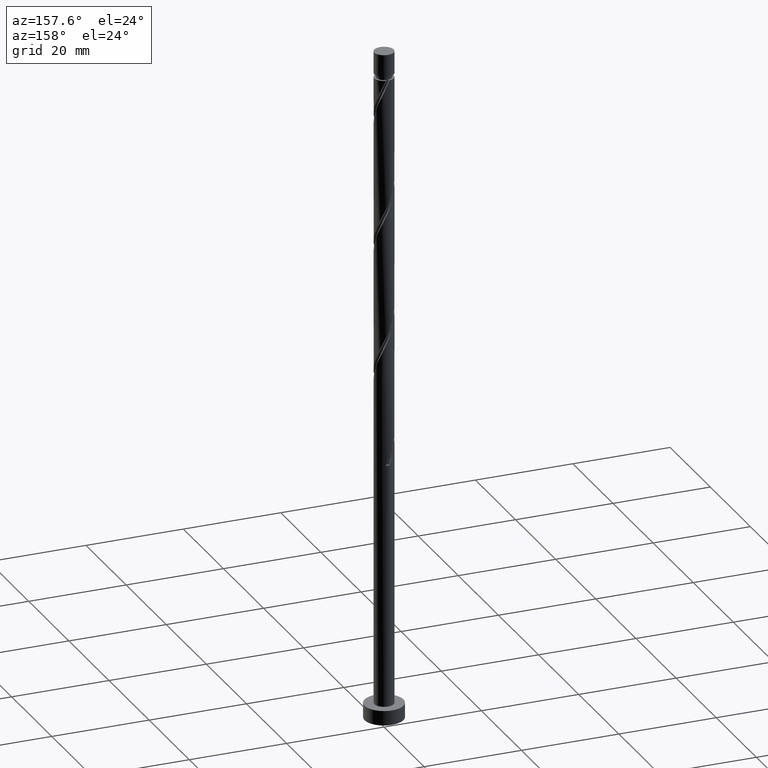
[diagram: clean part render]
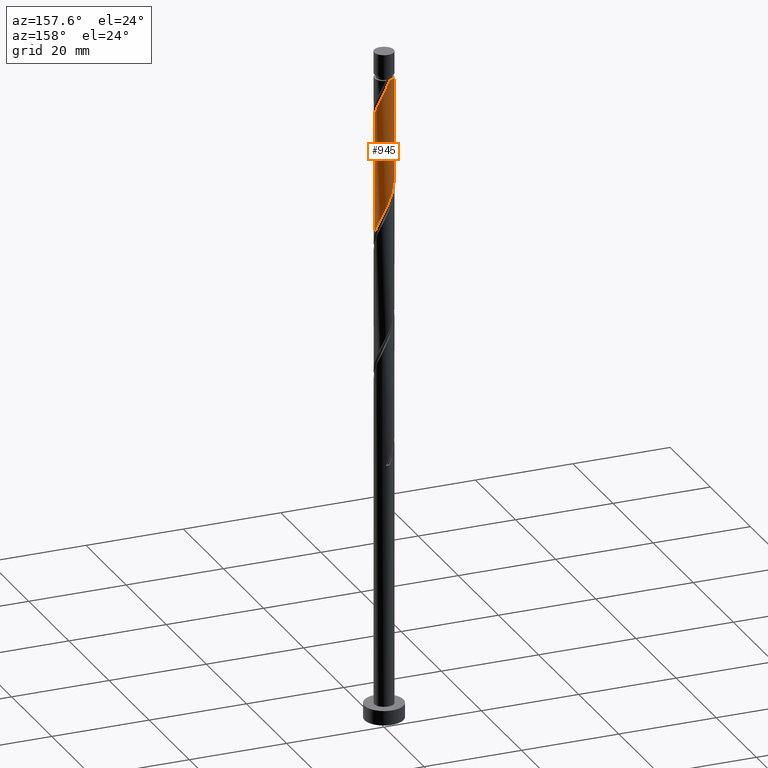
[diagram: same view with one face highlighted and labeled with its STEP entity id]
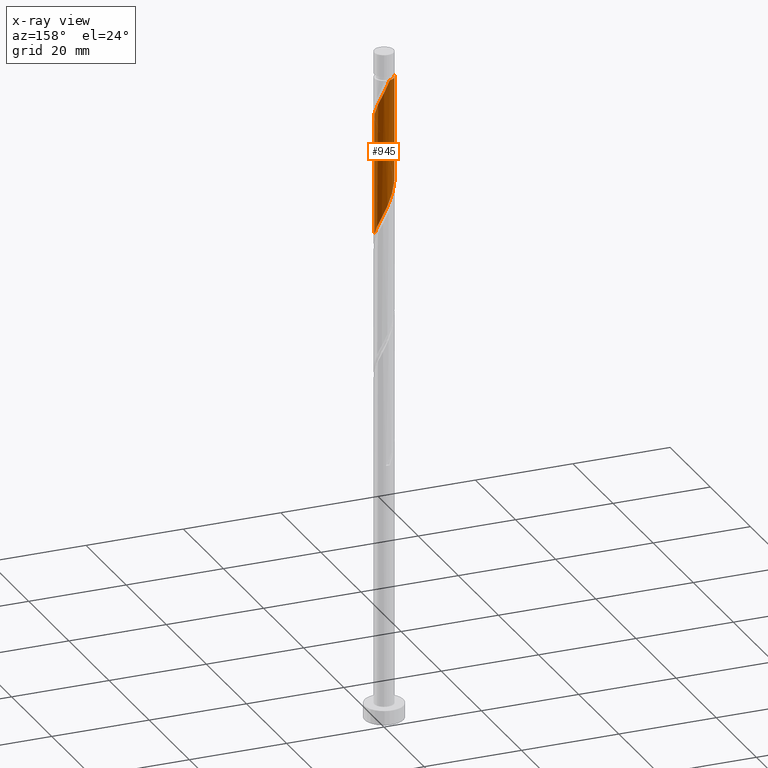
[diagram: x-ray of the same camera — body ghosted, the highlighted face saturated]
A machine part, auxiliary view. The second image highlights one B-rep face of the part: STEP entity #945.
The next image is the same camera in x-ray: the body ghosted, the highlighted face saturated — about 0% of this face is hidden behind the body in this view.
In plain terms, the highlighted cylindrical surface (edge-blend (fillet) strip) has radius 2 mm, axis along (-0, -0, -1).
Its self-contained STEP definition (entity closure, byte-faithful):
#4 = CARTESIAN_POINT ( 'NONE',  ( -2.000000000000000000, 0.000000000000000000, 138.4499999999999886 ) ) ;
#36 = CIRCLE ( 'NONE', #1536, 1.999999999999995781 ) ;
#71 = CARTESIAN_POINT ( 'NONE',  ( -0.3979949748426476197, 1.960000000000001297, 133.1136422821616918 ) ) ;
#82 = CARTESIAN_POINT ( 'NONE',  ( 1.600603406160404418, 1.233189980288573295, 103.4166725851920035 ) ) ;
#94 = EDGE_LOOP ( 'NONE', ( #908, #1583, #1259, #770, #634 ) ) ;
#98 = CARTESIAN_POINT ( 'NONE',  ( 1.980155124014554291, 0.4020876473299548337, 126.4469756154950346 ) ) ;
#141 = AXIS2_PLACEMENT_3D ( 'NONE', #292, #1293, #150 ) ;
#150 = DIRECTION ( 'NONE',  ( -1.000000000000000000, 0.000000000000000000, 0.000000000000000000 ) ) ;
#196 = VERTEX_POINT ( 'NONE', #1341 ) ;
#198 = CARTESIAN_POINT ( 'NONE',  ( 1.948211798543800555, 0.4521844623765074456, 101.5984907670101620 ) ) ;
#206 = DIRECTION ( 'NONE',  ( -1.000000000000000000, 0.000000000000000000, 0.000000000000000000 ) ) ;
#211 = CARTESIAN_POINT ( 'NONE',  ( -1.980155124014550738, 0.4020876473299550002, 113.1136422821616776 ) ) ;
#212 = CARTESIAN_POINT ( 'NONE',  ( 0.9340691933046015860, 1.768478086411955585, 105.2348544033738023 ) ) ;
#216 = CARTESIAN_POINT ( 'NONE',  ( 0.4568343776401070366, 1.968245701812304072, 131.2954604639798220 ) ) ;
#292 = CARTESIAN_POINT ( 'NONE',  ( 0.000000000000000000, 0.000000000000000000, 138.4499999999999886 ) ) ;
#321 = CARTESIAN_POINT ( 'NONE',  ( 1.617545623245914665, 1.176242388590887478, 128.2651574336768192 ) ) ;
#334 = CARTESIAN_POINT ( 'NONE',  ( 0.3979949748426484524, 1.959999999999999964, 106.4469756154950204 ) ) ;
#344 = CARTESIAN_POINT ( 'NONE',  ( -1.617545623245912001, 1.176242388590886589, 111.2954604639798504 ) ) ;
#384 = DIRECTION ( 'NONE',  ( -0.000000000000000000, -0.000000000000000000, -1.000000000000000000 ) ) ;
#390 = LINE ( 'NONE', #638, #756 ) ;
#396 = DIRECTION ( 'NONE',  ( -0.000000000000000000, -0.000000000000000000, -1.000000000000000000 ) ) ;
#501 = CARTESIAN_POINT ( 'NONE',  ( -0.4568343776401058709, 1.968245701812301851, 108.2651574336768476 ) ) ;
#586 = CARTESIAN_POINT ( 'NONE',  ( -0.1161895186124969476, 2.017223038501451349, 132.5075816761010401 ) ) ;
#591 = VERTEX_POINT ( 'NONE', #1478 ) ;
#605 = CARTESIAN_POINT ( 'NONE',  ( 0.1703224295138035527, 1.992734370156876489, 131.9015210700404452 ) ) ;
#615 = CARTESIAN_POINT ( 'NONE',  ( 1.883409435608319304, 0.6728810428757542317, 127.0530362215555868 ) ) ;
#618 =( BOUNDED_CURVE ( )  B_SPLINE_CURVE ( 2, ( #1234, #1001, #1473, #98, #615, #1088, #321, #1101, #963, #827, #1221, #216, #605, #586, #71 ),
 .UNSPECIFIED., .F., .T. ) 
 B_SPLINE_CURVE_WITH_KNOTS ( ( 3, 2, 2, 2, 2, 2, 2, 3 ),
 ( 0.6795252162417517727, 0.6818181818181818787, 0.6931818181818181213, 0.7045454545454545858, 0.7159090909090907173, 0.7272727272727271819, 0.7386363636363635354, 0.7499999999999998890 ),
 .UNSPECIFIED. ) 
 CURVE ( )  GEOMETRIC_REPRESENTATION_ITEM ( )  RATIONAL_B_SPLINE_CURVE ( ( 0.9061101570135651206, 0.9072237824201472289, 0.9090909090909243817, 0.8998376744372265090, 0.9090909090909243817, 0.8998376744372265090, 0.9090909090909243817, 0.8998376744372265090, 0.9090909090909243817, 0.8998376744372265090, 0.9090909090909243817, 0.8998376744372265090, 0.9090909090909243817, 0.8998376744372266201, 0.9090909090909242707 ) ) 
 REPRESENTATION_ITEM ( '' )  );
#634 = ORIENTED_EDGE ( 'NONE', *, *, #712, .T. ) ;
#638 = CARTESIAN_POINT ( 'NONE',  ( 2.000000000000000000, 2.449293598294706414E-16, 138.4499999999999886 ) ) ;
#660 = FACE_OUTER_BOUND ( 'NONE', #94, .T. ) ;
#687 =( BOUNDED_CURVE ( )  B_SPLINE_CURVE ( 2, ( #1486, #838, #720, #211, #981, #1494, #344, #1612, #1627, #1382, #1392, #501, #1113, #715, #334, #994, #212, #1506, #721, #82, #829, #1476, #198, #965, #1472 ),
 .UNSPECIFIED., .F., .T. ) 
 B_SPLINE_CURVE_WITH_KNOTS ( ( 3, 2, 2, 2, 2, 2, 2, 2, 2, 2, 2, 2, 3 ),
 ( 0.4295252162417511621, 0.4318181818181818232, 0.4431818181818181768, 0.4545454545454545303, 0.4659090909090908839, 0.4772727272727272929, 0.4886363636363636465, 0.5000000000000000000, 0.5113636363636363535, 0.5227272727272727071, 0.5340909090909090606, 0.5454545454545454142, 0.5545252162417512176 ),
 .UNSPECIFIED. ) 
 CURVE ( )  GEOMETRIC_REPRESENTATION_ITEM ( )  RATIONAL_B_SPLINE_CURVE ( ( 0.9061101570135583483, 0.9072237824201404566, 0.9090909090909180534, 0.8998376744372204028, 0.9090909090909180534, 0.8998376744372204028, 0.9090909090909180534, 0.8998376744372204028, 0.9090909090909180534, 0.8998376744372204028, 0.9090909090909180534, 0.8998376744372204028, 0.9090909090909180534, 0.8998376744372204028, 0.9090909090909180534, 0.8998376744372204028, 0.9090909090909180534, 0.8998376744372204028, 0.9090909090909180534, 0.8998376744372204028, 0.9090909090909180534, 0.8998376744372204028, 0.9090909090909180534, 0.9017048011079978886, 0.9061101570135583483 ) ) 
 REPRESENTATION_ITEM ( '' )  );
#697 = EDGE_CURVE ( 'NONE', #591, #196, #687, .T. ) ;
#712 = EDGE_CURVE ( 'NONE', #1007, #1549, #36, .T. ) ;
#715 = CARTESIAN_POINT ( 'NONE',  ( 0.1161895186125002227, 2.017223038501447796, 107.0530362215556011 ) ) ;
#720 = CARTESIAN_POINT ( 'NONE',  ( -1.996690616564939846, 0.1150068768444767603, 113.7197028882222867 ) ) ;
#721 = CARTESIAN_POINT ( 'NONE',  ( 1.394470680848406197, 1.433684595806965945, 104.0227331912526125 ) ) ;
#756 = VECTOR ( 'NONE', #384, 1000.000000000000000 ) ;
#770 = ORIENTED_EDGE ( 'NONE', *, *, #1011, .F. ) ;
#827 = CARTESIAN_POINT ( 'NONE',  ( 0.9928482695149686288, 1.759812803970230322, 130.0833392518586891 ) ) ;
#829 = CARTESIAN_POINT ( 'NONE',  ( 1.741900447066337954, 0.9827425057002944220, 102.8106119791313802 ) ) ;
#838 = CARTESIAN_POINT ( 'NONE',  ( -2.000000000000000000, 0.05755105304764007029, 113.8409987567443267 ) ) ;
#908 = ORIENTED_EDGE ( 'NONE', *, *, #1462, .F. ) ;
#937 = CARTESIAN_POINT ( 'NONE',  ( 2.000000000000003109, 8.899308318580325832E-16, 125.5975211361941319 ) ) ;
#945 = ADVANCED_FACE ( 'NONE', ( #660 ), #1436, .T. ) ;
#963 = CARTESIAN_POINT ( 'NONE',  ( 1.220637884402356432, 1.584311571365226046, 129.4772786457980374 ) ) ;
#965 = CARTESIAN_POINT ( 'NONE',  ( 1.999999999999999556, 0.2290578547702471490, 101.1157233811005653 ) ) ;
#981 = CARTESIAN_POINT ( 'NONE',  ( -1.883409435608316862, 0.6728810428757543427, 112.5075816761010969 ) ) ;
#994 = CARTESIAN_POINT ( 'NONE',  ( 0.6798004310727959743, 1.902776961498551689, 105.8409150094344255 ) ) ;
#1001 = CARTESIAN_POINT ( 'NONE',  ( 2.000000000000002665, 0.05755105304765396890, 125.7196191409123429 ) ) ;
#1007 = VERTEX_POINT ( 'NONE', #1553 ) ;
#1011 = EDGE_CURVE ( 'NONE', #1007, #591, #1163, .T. ) ;
#1020 = VERTEX_POINT ( 'NONE', #937 ) ;
#1088 = CARTESIAN_POINT ( 'NONE',  ( 1.786663747202085650, 0.9436744384215539627, 127.6590968276162243 ) ) ;
#1101 = CARTESIAN_POINT ( 'NONE',  ( 1.448427499289745235, 1.408810338760220882, 128.8712180397374425 ) ) ;
#1113 = CARTESIAN_POINT ( 'NONE',  ( -0.1703224295138028310, 1.992734370156874713, 107.6590968276162812 ) ) ;
#1163 = LINE ( 'NONE', #4, #1190 ) ;
#1190 = VECTOR ( 'NONE', #396, 1000.000000000000000 ) ;
#1221 = CARTESIAN_POINT ( 'NONE',  ( 0.7248413235775373886, 1.864029252891266530, 130.6893998579192555 ) ) ;
#1234 = CARTESIAN_POINT ( 'NONE',  ( 2.000000000000003109, 8.899308318580325832E-16, 125.5975211361941319 ) ) ;
#1256 = EDGE_CURVE ( 'NONE', #1020, #196, #390, .T. ) ;
#1259 = ORIENTED_EDGE ( 'NONE', *, *, #697, .F. ) ;
#1293 = DIRECTION ( 'NONE',  ( -0.000000000000000000, -0.000000000000000000, -1.000000000000000000 ) ) ;
#1341 = CARTESIAN_POINT ( 'NONE',  ( 2.000000000000000000, -1.974300332861531101E-15, 100.6297634281292517 ) ) ;
#1348 = CARTESIAN_POINT ( 'NONE',  ( -0.3979949748426476197, 1.960000000000001297, 133.1136422821616918 ) ) ;
#1382 = CARTESIAN_POINT ( 'NONE',  ( -0.9928482695149674075, 1.759812803970227879, 109.4772786457980231 ) ) ;
#1392 = CARTESIAN_POINT ( 'NONE',  ( -0.7248413235775366115, 1.864029252891264754, 108.8712180397374283 ) ) ;
#1436 = CYLINDRICAL_SURFACE ( 'NONE', #141, 2.000000000000000000 ) ;
#1462 = EDGE_CURVE ( 'NONE', #1020, #1549, #618, .T. ) ;
#1472 = CARTESIAN_POINT ( 'NONE',  ( 2.000000000000000000, -1.974300332861531101E-15, 100.6297634281292517 ) ) ;
#1473 = CARTESIAN_POINT ( 'NONE',  ( 1.996690616564942955, 0.1150068768444761219, 125.8409150094343971 ) ) ;
#1476 = CARTESIAN_POINT ( 'NONE',  ( 1.883197487972271933, 0.7322950311120133282, 102.2045513730707569 ) ) ;
#1478 = CARTESIAN_POINT ( 'NONE',  ( -2.000000000000000000, -1.256372939093701574E-15, 113.9630967614625803 ) ) ;
#1481 = DIRECTION ( 'NONE',  ( -0.000000000000000000, -0.000000000000000000, -1.000000000000000000 ) ) ;
#1486 = CARTESIAN_POINT ( 'NONE',  ( -2.000000000000000000, -1.256372939093701574E-15, 113.9630967614625803 ) ) ;
#1494 = CARTESIAN_POINT ( 'NONE',  ( -1.786663747202082320, 0.9436744384215536297, 111.9015210700404737 ) ) ;
#1506 = CARTESIAN_POINT ( 'NONE',  ( 1.188337955536407309, 1.634179211325358816, 104.6287937973131790 ) ) ;
#1536 = AXIS2_PLACEMENT_3D ( 'NONE', #1596, #1481, #206 ) ;
#1549 = VERTEX_POINT ( 'NONE', #1348 ) ;
#1553 = CARTESIAN_POINT ( 'NONE',  ( -1.999999999999995781, 0.000000000000000000, 133.1136422821616918 ) ) ;
#1583 = ORIENTED_EDGE ( 'NONE', *, *, #1256, .T. ) ;
#1596 = CARTESIAN_POINT ( 'NONE',  ( 0.000000000000000000, 0.000000000000000000, 133.1136422821616918 ) ) ;
#1612 = CARTESIAN_POINT ( 'NONE',  ( -1.448427499289741682, 1.408810338760219993, 110.6893998579192271 ) ) ;
#1627 = CARTESIAN_POINT ( 'NONE',  ( -1.220637884402354656, 1.584311571365223825, 110.0833392518586749 ) ) ;